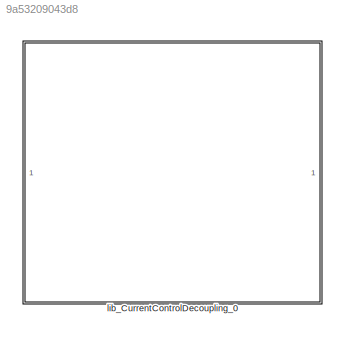
MODEL slx_9a53209043d8
KIND library
CONFIG AbsTol = auto
CONFIG EnableMultiTasking = off
CONFIG FixedStep = auto
CONFIG MaxStep = auto
CONFIG MinStep = auto
CONFIG RelTol = 1e-3
CONFIG SampleTimeConstraint = Unconstrained
CONFIG SolverName = VariableStepAuto
CONFIG StartTime = 0.0
CONFIG StopTime = 10.0
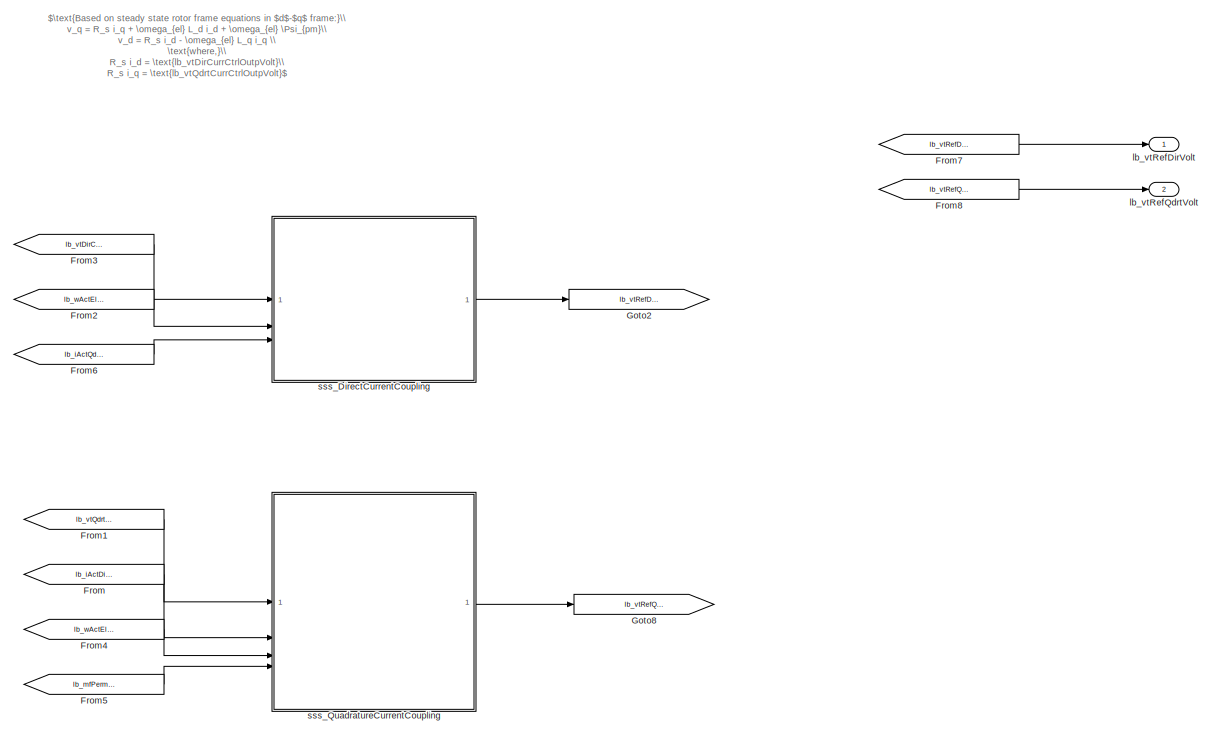
[diagram: lib_CurrentControlDecoupling_0 - part 1/2, center side, full height]
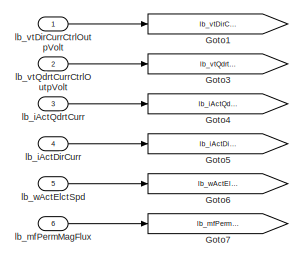
[diagram: lib_CurrentControlDecoupling_0 - part 2/2, middle left region]
BLOCK [SubSystem] lib_CurrentControlDecoupling_0
BLOCK [From] lib_CurrentControlDecoupling_0/From
  GotoTag = lb_iActDirCurr
BLOCK [From] lib_CurrentControlDecoupling_0/From1
  GotoTag = lb_vtQdrtCurrCtrlOutpVolt
BLOCK [From] lib_CurrentControlDecoupling_0/From2
  GotoTag = lb_wActElctSpd
BLOCK [From] lib_CurrentControlDecoupling_0/From3
  GotoTag = lb_vtDirCurrCtrlOutpVolt
BLOCK [From] lib_CurrentControlDecoupling_0/From4
  GotoTag = lb_wActElctSpd
BLOCK [From] lib_CurrentControlDecoupling_0/From5
  GotoTag = lb_mfPermMagFlux
BLOCK [From] lib_CurrentControlDecoupling_0/From6
  GotoTag = lb_iActQdrtCurr
BLOCK [From] lib_CurrentControlDecoupling_0/From7
  GotoTag = lb_vtRefDirVolt
BLOCK [From] lib_CurrentControlDecoupling_0/From8
  GotoTag = lb_vtRefQdrtVolt
BLOCK [Goto] lib_CurrentControlDecoupling_0/Goto1
  GotoTag = lb_vtDirCurrCtrlOutpVolt
BLOCK [Goto] lib_CurrentControlDecoupling_0/Goto2
  GotoTag = lb_vtRefDirVolt
BLOCK [Goto] lib_CurrentControlDecoupling_0/Goto3
  GotoTag = lb_vtQdrtCurrCtrlOutpVolt
BLOCK [Goto] lib_CurrentControlDecoupling_0/Goto4
  GotoTag = lb_iActQdrtCurr
BLOCK [Goto] lib_CurrentControlDecoupling_0/Goto5
  GotoTag = lb_iActDirCurr
BLOCK [Goto] lib_CurrentControlDecoupling_0/Goto6
  GotoTag = lb_wActElctSpd
BLOCK [Goto] lib_CurrentControlDecoupling_0/Goto7
  GotoTag = lb_mfPermMagFlux
BLOCK [Goto] lib_CurrentControlDecoupling_0/Goto8
  GotoTag = lb_vtRefQdrtVolt
BLOCK [Inport] lib_CurrentControlDecoupling_0/lb_iActDirCurr
  Port = 4
BLOCK [Inport] lib_CurrentControlDecoupling_0/lb_iActQdrtCurr
  Port = 3
BLOCK [Inport] lib_CurrentControlDecoupling_0/lb_mfPermMagFlux
  Port = 6
BLOCK [Inport] lib_CurrentControlDecoupling_0/lb_vtDirCurrCtrlOutpVolt
BLOCK [Inport] lib_CurrentControlDecoupling_0/lb_vtQdrtCurrCtrlOutpVolt
  Port = 2
BLOCK [Outport] lib_CurrentControlDecoupling_0/lb_vtRefDirVolt
BLOCK [Outport] lib_CurrentControlDecoupling_0/lb_vtRefQdrtVolt
  Port = 2
BLOCK [Inport] lib_CurrentControlDecoupling_0/lb_wActElctSpd
  Port = 5
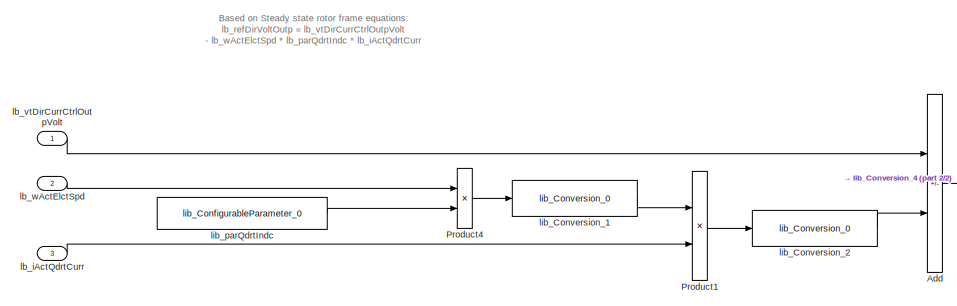
[diagram: lib_CurrentControlDecoupling_0/sss_DirectCurrentCoupling - part 1/2, left side, full height]
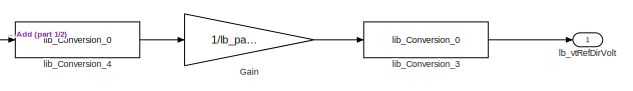
[diagram: lib_CurrentControlDecoupling_0/sss_DirectCurrentCoupling - part 2/2, middle right region]
BLOCK [SubSystem] lib_CurrentControlDecoupling_0/sss_DirectCurrentCoupling
BLOCK [Sum] lib_CurrentControlDecoupling_0/sss_DirectCurrentCoupling/Add
  IconShape = rectangular
  Inputs = +-
  OutDataTypeStr = Inherit: Inherit via back propagation
BLOCK [Gain] lib_CurrentControlDecoupling_0/sss_DirectCurrentCoupling/Gain
  Gain = 1/lb_parOutpPekPhy
  OutDataTypeStr = Inherit: Inherit via back propagation
BLOCK [Product] lib_CurrentControlDecoupling_0/sss_DirectCurrentCoupling/Product1
  OutDataTypeStr = Inherit: Inherit via back propagation
BLOCK [Product] lib_CurrentControlDecoupling_0/sss_DirectCurrentCoupling/Product4
  OutDataTypeStr = Inherit: Inherit via back propagation
BLOCK [Inport] lib_CurrentControlDecoupling_0/sss_DirectCurrentCoupling/lb_iActQdrtCurr
  Port = 3
BLOCK [Inport] lib_CurrentControlDecoupling_0/sss_DirectCurrentCoupling/lb_vtDirCurrCtrlOutpVolt
BLOCK [Outport] lib_CurrentControlDecoupling_0/sss_DirectCurrentCoupling/lb_vtRefDirVolt
BLOCK [Inport] lib_CurrentControlDecoupling_0/sss_DirectCurrentCoupling/lb_wActElctSpd
  Port = 2
BLOCK [Reference] lib_CurrentControlDecoupling_0/sss_DirectCurrentCoupling/lib_Conversion_1  REF=lib_conversion/lib_Conversion_0  (lib defined in slx_7f5c0202220d)
  SourceBlock = lib_conversion/lib_Conversion_0
BLOCK [Reference] lib_CurrentControlDecoupling_0/sss_DirectCurrentCoupling/lib_Conversion_2  REF=lib_conversion/lib_Conversion_0  (lib defined in slx_7f5c0202220d)
  SourceBlock = lib_conversion/lib_Conversion_0
BLOCK [Reference] lib_CurrentControlDecoupling_0/sss_DirectCurrentCoupling/lib_Conversion_3  REF=lib_conversion/lib_Conversion_0  (lib defined in slx_7f5c0202220d)
  SourceBlock = lib_conversion/lib_Conversion_0
BLOCK [Reference] lib_CurrentControlDecoupling_0/sss_DirectCurrentCoupling/lib_Conversion_4  REF=lib_conversion/lib_Conversion_0  (lib defined in slx_7f5c0202220d)
  SourceBlock = lib_conversion/lib_Conversion_0
BLOCK [Reference] lib_CurrentControlDecoupling_0/sss_DirectCurrentCoupling/lib_parQdrtIndc  REF=lib_configurable_parameter/lib_ConfigurableParameter_0  (lib defined in slx_5d3177bc440c)
  SourceBlock = lib_configurable_parameter/lib_ConfigurableParameter_0
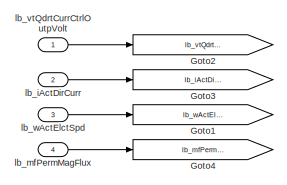
[diagram: lib_CurrentControlDecoupling_0/sss_QuadratureCurrentCoupling - part 1/3, top left region]
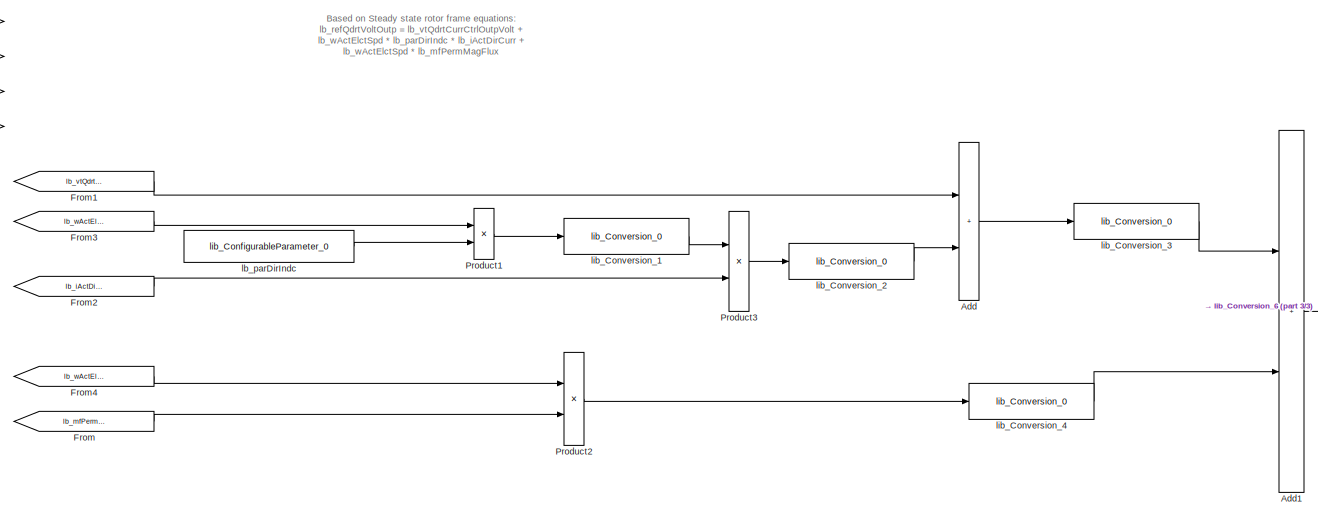
[diagram: lib_CurrentControlDecoupling_0/sss_QuadratureCurrentCoupling - part 2/3, center side, full height]
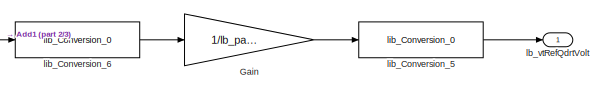
[diagram: lib_CurrentControlDecoupling_0/sss_QuadratureCurrentCoupling - part 3/3, middle right region]
BLOCK [SubSystem] lib_CurrentControlDecoupling_0/sss_QuadratureCurrentCoupling
BLOCK [Sum] lib_CurrentControlDecoupling_0/sss_QuadratureCurrentCoupling/Add
  IconShape = rectangular
  OutDataTypeStr = Inherit: Inherit via back propagation
BLOCK [Sum] lib_CurrentControlDecoupling_0/sss_QuadratureCurrentCoupling/Add1
  IconShape = rectangular
  OutDataTypeStr = Inherit: Inherit via back propagation
BLOCK [From] lib_CurrentControlDecoupling_0/sss_QuadratureCurrentCoupling/From
  GotoTag = lb_mfPermMagFlux
BLOCK [From] lib_CurrentControlDecoupling_0/sss_QuadratureCurrentCoupling/From1
  GotoTag = lb_vtQdrtCurrCtrlOutpVolt
BLOCK [From] lib_CurrentControlDecoupling_0/sss_QuadratureCurrentCoupling/From2
  GotoTag = lb_iActDirCurr
BLOCK [From] lib_CurrentControlDecoupling_0/sss_QuadratureCurrentCoupling/From3
  GotoTag = lb_wActElctSpd
BLOCK [From] lib_CurrentControlDecoupling_0/sss_QuadratureCurrentCoupling/From4
  GotoTag = lb_wActElctSpd
BLOCK [Gain] lib_CurrentControlDecoupling_0/sss_QuadratureCurrentCoupling/Gain
  Gain = 1/lb_parOutpPekPhy
  OutDataTypeStr = Inherit: Inherit via back propagation
BLOCK [Goto] lib_CurrentControlDecoupling_0/sss_QuadratureCurrentCoupling/Goto1
  GotoTag = lb_wActElctSpd
BLOCK [Goto] lib_CurrentControlDecoupling_0/sss_QuadratureCurrentCoupling/Goto2
  GotoTag = lb_vtQdrtCurrCtrlOutpVolt
BLOCK [Goto] lib_CurrentControlDecoupling_0/sss_QuadratureCurrentCoupling/Goto3
  GotoTag = lb_iActDirCurr
BLOCK [Goto] lib_CurrentControlDecoupling_0/sss_QuadratureCurrentCoupling/Goto4
  GotoTag = lb_mfPermMagFlux
BLOCK [Product] lib_CurrentControlDecoupling_0/sss_QuadratureCurrentCoupling/Product1
  OutDataTypeStr = Inherit: Inherit via back propagation
BLOCK [Product] lib_CurrentControlDecoupling_0/sss_QuadratureCurrentCoupling/Product2
  OutDataTypeStr = Inherit: Inherit via back propagation
BLOCK [Product] lib_CurrentControlDecoupling_0/sss_QuadratureCurrentCoupling/Product3
  OutDataTypeStr = Inherit: Inherit via back propagation
BLOCK [Inport] lib_CurrentControlDecoupling_0/sss_QuadratureCurrentCoupling/lb_iActDirCurr
  Port = 2
BLOCK [Inport] lib_CurrentControlDecoupling_0/sss_QuadratureCurrentCoupling/lb_mfPermMagFlux
  Port = 4
BLOCK [Reference] lib_CurrentControlDecoupling_0/sss_QuadratureCurrentCoupling/lb_parDirIndc  REF=lib_configurable_parameter/lib_ConfigurableParameter_0  (lib defined in slx_5d3177bc440c)
  SourceBlock = lib_configurable_parameter/lib_ConfigurableParameter_0
BLOCK [Inport] lib_CurrentControlDecoupling_0/sss_QuadratureCurrentCoupling/lb_vtQdrtCurrCtrlOutpVolt
BLOCK [Outport] lib_CurrentControlDecoupling_0/sss_QuadratureCurrentCoupling/lb_vtRefQdrtVolt
BLOCK [Inport] lib_CurrentControlDecoupling_0/sss_QuadratureCurrentCoupling/lb_wActElctSpd
  Port = 3
BLOCK [Reference] lib_CurrentControlDecoupling_0/sss_QuadratureCurrentCoupling/lib_Conversion_1  REF=lib_conversion/lib_Conversion_0  (lib defined in slx_7f5c0202220d)
  SourceBlock = lib_conversion/lib_Conversion_0
BLOCK [Reference] lib_CurrentControlDecoupling_0/sss_QuadratureCurrentCoupling/lib_Conversion_2  REF=lib_conversion/lib_Conversion_0  (lib defined in slx_7f5c0202220d)
  SourceBlock = lib_conversion/lib_Conversion_0
BLOCK [Reference] lib_CurrentControlDecoupling_0/sss_QuadratureCurrentCoupling/lib_Conversion_3  REF=lib_conversion/lib_Conversion_0  (lib defined in slx_7f5c0202220d)
  SourceBlock = lib_conversion/lib_Conversion_0
BLOCK [Reference] lib_CurrentControlDecoupling_0/sss_QuadratureCurrentCoupling/lib_Conversion_4  REF=lib_conversion/lib_Conversion_0  (lib defined in slx_7f5c0202220d)
  SourceBlock = lib_conversion/lib_Conversion_0
BLOCK [Reference] lib_CurrentControlDecoupling_0/sss_QuadratureCurrentCoupling/lib_Conversion_5  REF=lib_conversion/lib_Conversion_0  (lib defined in slx_7f5c0202220d)
  SourceBlock = lib_conversion/lib_Conversion_0
BLOCK [Reference] lib_CurrentControlDecoupling_0/sss_QuadratureCurrentCoupling/lib_Conversion_6  REF=lib_conversion/lib_Conversion_0  (lib defined in slx_7f5c0202220d)
  SourceBlock = lib_conversion/lib_Conversion_0
ANNOTATION lib_CurrentControlDecoupling_0: $\text{Based on steady state rotor frame equations in $d$-$q$ frame:}\\ v_q = R_s i_q + \omega_{el} L_d i_d + \omega_{el} \Psi_{pm}\\ v_d = R_s i_d - \omega_{el} L_q i_q \\ \text{where,}\\ R_s i_d = \text{lb_vtDirCurrCtrlOutpVolt}\\ R_s i_q = \text{lb_vtQdrtCurrCtrlOutpVolt}$
ANNOTATION lib_CurrentControlDecoupling_0/sss_DirectCurrentCoupling: Based on Steady state rotor frame equations: lb_refDirVoltOutp = lb_vtDirCurrCtrlOutpVolt - lb_wActElctSpd * lb_parQdrtIndc * lb_iActQdrtCurr
ANNOTATION lib_CurrentControlDecoupling_0/sss_QuadratureCurrentCoupling: Based on Steady state rotor frame equations: lb_refQdrtVoltOutp = lb_vtQdrtCurrCtrlOutpVolt + lb_wActElctSpd * lb_parDirIndc * lb_iActDirCurr + lb_wActElctSpd * lb_mfPermMagFlux
LINE lib_CurrentControlDecoupling_0/From1:1 -> lib_CurrentControlDecoupling_0/sss_QuadratureCurrentCoupling:1
LINE lib_CurrentControlDecoupling_0/From2:1 -> lib_CurrentControlDecoupling_0/sss_DirectCurrentCoupling:2
LINE lib_CurrentControlDecoupling_0/From3:1 -> lib_CurrentControlDecoupling_0/sss_DirectCurrentCoupling:1
LINE lib_CurrentControlDecoupling_0/From4:1 -> lib_CurrentControlDecoupling_0/sss_QuadratureCurrentCoupling:3
LINE lib_CurrentControlDecoupling_0/From5:1 -> lib_CurrentControlDecoupling_0/sss_QuadratureCurrentCoupling:4
LINE lib_CurrentControlDecoupling_0/From6:1 -> lib_CurrentControlDecoupling_0/sss_DirectCurrentCoupling:3
LINE lib_CurrentControlDecoupling_0/From7:1 -> lib_CurrentControlDecoupling_0/lb_vtRefDirVolt:1
LINE lib_CurrentControlDecoupling_0/From8:1 -> lib_CurrentControlDecoupling_0/lb_vtRefQdrtVolt:1
LINE lib_CurrentControlDecoupling_0/From:1 -> lib_CurrentControlDecoupling_0/sss_QuadratureCurrentCoupling:2
LINE lib_CurrentControlDecoupling_0/lb_iActDirCurr:1 -> lib_CurrentControlDecoupling_0/Goto5:1
LINE lib_CurrentControlDecoupling_0/lb_iActQdrtCurr:1 -> lib_CurrentControlDecoupling_0/Goto4:1
LINE lib_CurrentControlDecoupling_0/lb_mfPermMagFlux:1 -> lib_CurrentControlDecoupling_0/Goto7:1
LINE lib_CurrentControlDecoupling_0/lb_vtDirCurrCtrlOutpVolt:1 -> lib_CurrentControlDecoupling_0/Goto1:1
LINE lib_CurrentControlDecoupling_0/lb_vtQdrtCurrCtrlOutpVolt:1 -> lib_CurrentControlDecoupling_0/Goto3:1
LINE lib_CurrentControlDecoupling_0/lb_wActElctSpd:1 -> lib_CurrentControlDecoupling_0/Goto6:1
LINE lib_CurrentControlDecoupling_0/sss_DirectCurrentCoupling/Add:1 -> lib_CurrentControlDecoupling_0/sss_DirectCurrentCoupling/lib_Conversion_4:1
LINE lib_CurrentControlDecoupling_0/sss_DirectCurrentCoupling/Gain:1 -> lib_CurrentControlDecoupling_0/sss_DirectCurrentCoupling/lib_Conversion_3:1
LINE lib_CurrentControlDecoupling_0/sss_DirectCurrentCoupling/Product1:1 -> lib_CurrentControlDecoupling_0/sss_DirectCurrentCoupling/lib_Conversion_2:1
LINE lib_CurrentControlDecoupling_0/sss_DirectCurrentCoupling/Product4:1 -> lib_CurrentControlDecoupling_0/sss_DirectCurrentCoupling/lib_Conversion_1:1
LINE lib_CurrentControlDecoupling_0/sss_DirectCurrentCoupling/lb_iActQdrtCurr:1 -> lib_CurrentControlDecoupling_0/sss_DirectCurrentCoupling/Product1:2
LINE lib_CurrentControlDecoupling_0/sss_DirectCurrentCoupling/lb_vtDirCurrCtrlOutpVolt:1 -> lib_CurrentControlDecoupling_0/sss_DirectCurrentCoupling/Add:1
LINE lib_CurrentControlDecoupling_0/sss_DirectCurrentCoupling/lb_wActElctSpd:1 -> lib_CurrentControlDecoupling_0/sss_DirectCurrentCoupling/Product4:1
LINE lib_CurrentControlDecoupling_0/sss_DirectCurrentCoupling/lib_Conversion_1:1 -> lib_CurrentControlDecoupling_0/sss_DirectCurrentCoupling/Product1:1
LINE lib_CurrentControlDecoupling_0/sss_DirectCurrentCoupling/lib_Conversion_2:1 -> lib_CurrentControlDecoupling_0/sss_DirectCurrentCoupling/Add:2
LINE lib_CurrentControlDecoupling_0/sss_DirectCurrentCoupling/lib_Conversion_3:1 -> lib_CurrentControlDecoupling_0/sss_DirectCurrentCoupling/lb_vtRefDirVolt:1
LINE lib_CurrentControlDecoupling_0/sss_DirectCurrentCoupling/lib_Conversion_4:1 -> lib_CurrentControlDecoupling_0/sss_DirectCurrentCoupling/Gain:1
LINE lib_CurrentControlDecoupling_0/sss_DirectCurrentCoupling/lib_parQdrtIndc:1 -> lib_CurrentControlDecoupling_0/sss_DirectCurrentCoupling/Product4:2
LINE lib_CurrentControlDecoupling_0/sss_DirectCurrentCoupling:1 -> lib_CurrentControlDecoupling_0/Goto2:1
LINE lib_CurrentControlDecoupling_0/sss_QuadratureCurrentCoupling/Add1:1 -> lib_CurrentControlDecoupling_0/sss_QuadratureCurrentCoupling/lib_Conversion_6:1
LINE lib_CurrentControlDecoupling_0/sss_QuadratureCurrentCoupling/Add:1 -> lib_CurrentControlDecoupling_0/sss_QuadratureCurrentCoupling/lib_Conversion_3:1
LINE lib_CurrentControlDecoupling_0/sss_QuadratureCurrentCoupling/From1:1 -> lib_CurrentControlDecoupling_0/sss_QuadratureCurrentCoupling/Add:1
LINE lib_CurrentControlDecoupling_0/sss_QuadratureCurrentCoupling/From2:1 -> lib_CurrentControlDecoupling_0/sss_QuadratureCurrentCoupling/Product3:2
LINE lib_CurrentControlDecoupling_0/sss_QuadratureCurrentCoupling/From3:1 -> lib_CurrentControlDecoupling_0/sss_QuadratureCurrentCoupling/Product1:1
LINE lib_CurrentControlDecoupling_0/sss_QuadratureCurrentCoupling/From4:1 -> lib_CurrentControlDecoupling_0/sss_QuadratureCurrentCoupling/Product2:1
LINE lib_CurrentControlDecoupling_0/sss_QuadratureCurrentCoupling/From:1 -> lib_CurrentControlDecoupling_0/sss_QuadratureCurrentCoupling/Product2:2
LINE lib_CurrentControlDecoupling_0/sss_QuadratureCurrentCoupling/Gain:1 -> lib_CurrentControlDecoupling_0/sss_QuadratureCurrentCoupling/lib_Conversion_5:1
LINE lib_CurrentControlDecoupling_0/sss_QuadratureCurrentCoupling/Product1:1 -> lib_CurrentControlDecoupling_0/sss_QuadratureCurrentCoupling/lib_Conversion_1:1
LINE lib_CurrentControlDecoupling_0/sss_QuadratureCurrentCoupling/Product2:1 -> lib_CurrentControlDecoupling_0/sss_QuadratureCurrentCoupling/lib_Conversion_4:1
LINE lib_CurrentControlDecoupling_0/sss_QuadratureCurrentCoupling/Product3:1 -> lib_CurrentControlDecoupling_0/sss_QuadratureCurrentCoupling/lib_Conversion_2:1
LINE lib_CurrentControlDecoupling_0/sss_QuadratureCurrentCoupling/lb_iActDirCurr:1 -> lib_CurrentControlDecoupling_0/sss_QuadratureCurrentCoupling/Goto3:1
LINE lib_CurrentControlDecoupling_0/sss_QuadratureCurrentCoupling/lb_mfPermMagFlux:1 -> lib_CurrentControlDecoupling_0/sss_QuadratureCurrentCoupling/Goto4:1
LINE lib_CurrentControlDecoupling_0/sss_QuadratureCurrentCoupling/lb_parDirIndc:1 -> lib_CurrentControlDecoupling_0/sss_QuadratureCurrentCoupling/Product1:2
LINE lib_CurrentControlDecoupling_0/sss_QuadratureCurrentCoupling/lb_vtQdrtCurrCtrlOutpVolt:1 -> lib_CurrentControlDecoupling_0/sss_QuadratureCurrentCoupling/Goto2:1
LINE lib_CurrentControlDecoupling_0/sss_QuadratureCurrentCoupling/lb_wActElctSpd:1 -> lib_CurrentControlDecoupling_0/sss_QuadratureCurrentCoupling/Goto1:1
LINE lib_CurrentControlDecoupling_0/sss_QuadratureCurrentCoupling/lib_Conversion_1:1 -> lib_CurrentControlDecoupling_0/sss_QuadratureCurrentCoupling/Product3:1
LINE lib_CurrentControlDecoupling_0/sss_QuadratureCurrentCoupling/lib_Conversion_2:1 -> lib_CurrentControlDecoupling_0/sss_QuadratureCurrentCoupling/Add:2
LINE lib_CurrentControlDecoupling_0/sss_QuadratureCurrentCoupling/lib_Conversion_3:1 -> lib_CurrentControlDecoupling_0/sss_QuadratureCurrentCoupling/Add1:1
LINE lib_CurrentControlDecoupling_0/sss_QuadratureCurrentCoupling/lib_Conversion_4:1 -> lib_CurrentControlDecoupling_0/sss_QuadratureCurrentCoupling/Add1:2
LINE lib_CurrentControlDecoupling_0/sss_QuadratureCurrentCoupling/lib_Conversion_5:1 -> lib_CurrentControlDecoupling_0/sss_QuadratureCurrentCoupling/lb_vtRefQdrtVolt:1
LINE lib_CurrentControlDecoupling_0/sss_QuadratureCurrentCoupling/lib_Conversion_6:1 -> lib_CurrentControlDecoupling_0/sss_QuadratureCurrentCoupling/Gain:1
LINE lib_CurrentControlDecoupling_0/sss_QuadratureCurrentCoupling:1 -> lib_CurrentControlDecoupling_0/Goto8:1
